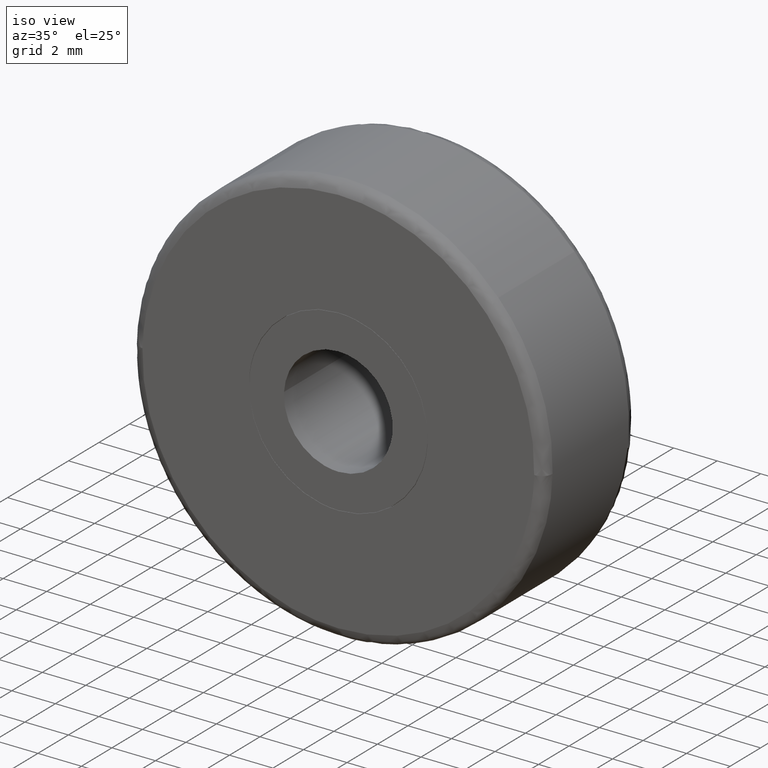
[diagram: clean part render]
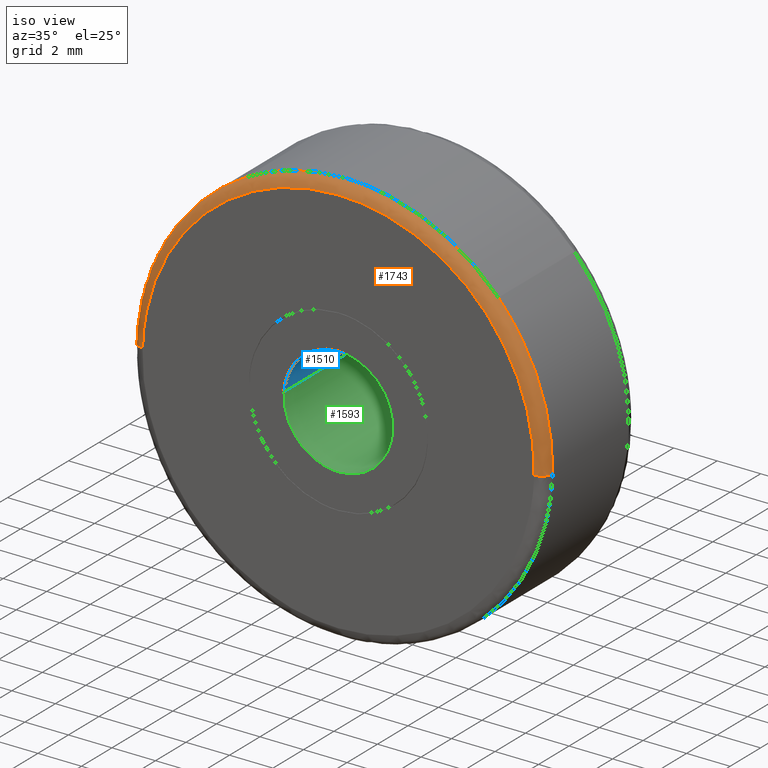
[diagram: same view with three faces highlighted in distinct colors, each labeled with its STEP entity id]
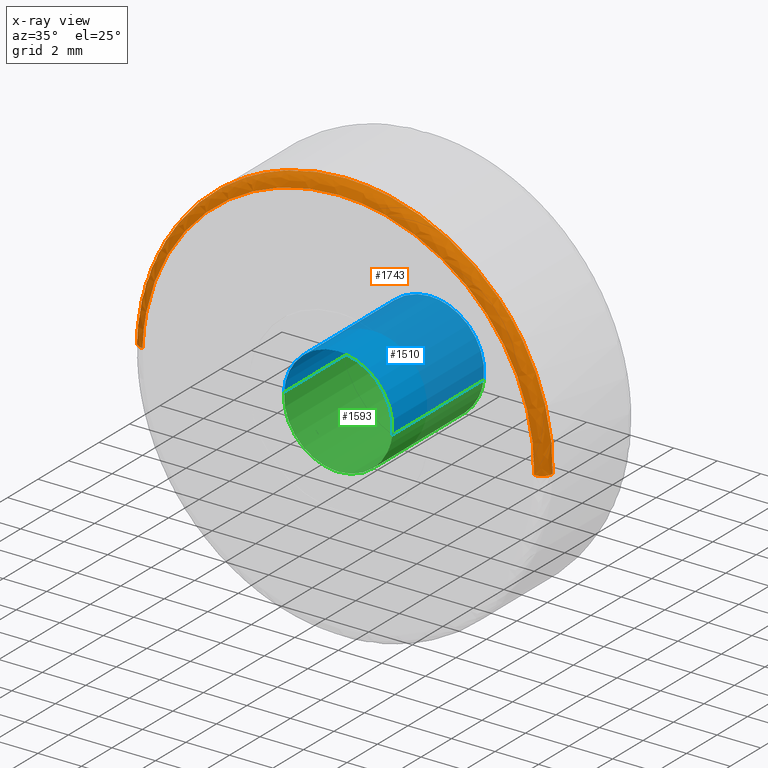
[diagram: x-ray of the same camera — body ghosted, the three highlighted faces saturated]
A machine part, iso view with three faces highlighted in distinct colors.
The next image is the same camera in x-ray (body ghosted, the three faces saturated) — at least one of them is partly hidden behind the body in this view.
Their STEP definitions:

[orange] entity #1743 — the highlighted face is a freeform B-spline surface patch.
#1190=CARTESIAN_POINT('',(-4.600085988359925,0.499999999981940,8.311991873172854));
#1191=VERTEX_POINT('',#1190);
#1192=CARTESIAN_POINT('',(-9.496999798191341,0.499999999859289,0.238735906711980));
#1193=VERTEX_POINT('',#1192);
#1194=CARTESIAN_POINT('',(-4.600085988359925,0.499999999981940,8.311991873172854));
#1195=CARTESIAN_POINT('',(-9.360278201085677,0.499999999941924,5.677569963987287));
#1196=CARTESIAN_POINT('',(-9.496999798191341,0.499999999859289,0.238735906711980));
#1204=(BOUNDED_CURVE()B_SPLINE_CURVE(2,(#1194,#1195,#1196),.UNSPECIFIED.,.F.,.U.)B_SPLINE_CURVE_WITH_KNOTS((3,3),(0.582484261791916,0.745579891769798),.UNSPECIFIED.)CURVE()GEOMETRIC_REPRESENTATION_ITEM()RATIONAL_B_SPLINE_CURVE((0.870495159113431,0.805504439765904,0.989826157681555))REPRESENTATION_ITEM(''));
#1205=EDGE_CURVE('',#1191,#1193,#1204,.T.);
#1276=CARTESIAN_POINT('',(7.004135048799357,0.500000000000003,6.418106591369461));
#1277=VERTEX_POINT('',#1276);
#1283=CARTESIAN_POINT('',(9.496999798191341,0.499999999859289,-0.238735906711978));
#1284=VERTEX_POINT('',#1283);
#1285=CARTESIAN_POINT('',(9.496999798191341,0.499999999859289,-0.238735906711978));
#1286=CARTESIAN_POINT('',(9.500000000000000,0.500000000000000,-0.119386805172379));
#1287=CARTESIAN_POINT('',(9.500000000000000,0.500000000000000,-1.501658E-016));
#1288=CARTESIAN_POINT('',(9.499999999999998,0.500000000000000,3.694347357720723));
#1289=CARTESIAN_POINT('',(7.004135048799357,0.500000000000003,6.418106591369461));
#1297=(BOUNDED_CURVE()B_SPLINE_CURVE(2,(#1285,#1286,#1287,#1288,#1289),.UNSPECIFIED.,.F.,.U.)B_SPLINE_CURVE_WITH_KNOTS((3,2,3),(0.245579891769798,0.250000000000000,0.368415192661570),.UNSPECIFIED.)CURVE()GEOMETRIC_REPRESENTATION_ITEM()RATIONAL_B_SPLINE_CURVE((0.989826157681553,0.994821521091809,1.0,0.861267972259750,0.853959782865036))REPRESENTATION_ITEM(''));
#1298=EDGE_CURVE('',#1284,#1277,#1297,.T.);
#1347=CARTESIAN_POINT('',(0.0,0.500000000000000,9.500000000000000));
#1348=VERTEX_POINT('',#1347);
#1349=CARTESIAN_POINT('',(0.0,0.500000000000000,9.500000000000000));
#1350=CARTESIAN_POINT('',(-2.453449181909779,0.500000000000000,9.499999999999998));
#1351=CARTESIAN_POINT('',(-4.600085988359925,0.499999999981940,8.311991873172854));
#1359=(BOUNDED_CURVE()B_SPLINE_CURVE(2,(#1349,#1350,#1351),.UNSPECIFIED.,.F.,.U.)B_SPLINE_CURVE_WITH_KNOTS((3,3),(0.500000000000000,0.582484261791916),.UNSPECIFIED.)CURVE()GEOMETRIC_REPRESENTATION_ITEM()RATIONAL_B_SPLINE_CURVE((1.0,0.903363676249257,0.870495159113431))REPRESENTATION_ITEM(''));
#1360=EDGE_CURVE('',#1348,#1191,#1359,.T.);
#1362=CARTESIAN_POINT('',(7.004135048799357,0.500000000000003,6.418106591369461));
#1363=CARTESIAN_POINT('',(4.180100660255818,0.500000000000000,9.500000000000000));
#1364=CARTESIAN_POINT('',(0.0,0.500000000000000,9.500000000000000));
#1372=(BOUNDED_CURVE()B_SPLINE_CURVE(2,(#1362,#1363,#1364),.UNSPECIFIED.,.F.,.U.)B_SPLINE_CURVE_WITH_KNOTS((3,3),(0.368415192661570,0.500000000000000),.UNSPECIFIED.)CURVE()GEOMETRIC_REPRESENTATION_ITEM()RATIONAL_B_SPLINE_CURVE((0.853959782865036,0.845838808926797,1.0))REPRESENTATION_ITEM(''));
#1373=EDGE_CURVE('',#1277,#1348,#1372,.T.);
#1617=CARTESIAN_POINT('',(-8.997157704102083,-7.545715E-016,0.226170859018032));
#1618=VERTEX_POINT('',#1617);
#1636=CARTESIAN_POINT('',(-9.496999798191341,0.499999999859289,0.238735906711980));
#1637=CARTESIAN_POINT('',(-9.496999797910013,1.105827E-009,0.238735906704634));
#1638=CARTESIAN_POINT('',(-8.997157704102083,-7.545715E-016,0.226170859018032));
#1646=(BOUNDED_CURVE()B_SPLINE_CURVE(2,(#1636,#1637,#1638),.UNSPECIFIED.,.F.,.U.)B_SPLINE_CURVE_WITH_KNOTS((3,3),(-1.723441281405269,-0.263586881216809),.UNSPECIFIED.)CURVE()GEOMETRIC_REPRESENTATION_ITEM()RATIONAL_B_SPLINE_CURVE((0.883897566934423,0.626638727744861,0.888510408241346))REPRESENTATION_ITEM(''));
#1647=EDGE_CURVE('',#1193,#1618,#1646,.T.);
#1651=CARTESIAN_POINT('',(8.997157704102083,-7.389523E-016,-0.226170859018029));
#1652=VERTEX_POINT('',#1651);
#1653=CARTESIAN_POINT('',(9.496999798191341,0.499999999859289,-0.238735906711978));
#1654=CARTESIAN_POINT('',(9.496999797910013,1.105827E-009,-0.238735906704633));
#1655=CARTESIAN_POINT('',(8.997157704102083,-7.389523E-016,-0.226170859018029));
#1663=(BOUNDED_CURVE()B_SPLINE_CURVE(2,(#1653,#1654,#1655),.UNSPECIFIED.,.F.,.U.)B_SPLINE_CURVE_WITH_KNOTS((3,3),(-1.723441281405269,-0.263586881216810),.UNSPECIFIED.)CURVE()GEOMETRIC_REPRESENTATION_ITEM()RATIONAL_B_SPLINE_CURVE((0.883897566934423,0.626638727744861,0.888510408241346))REPRESENTATION_ITEM(''));
#1664=EDGE_CURVE('',#1284,#1652,#1663,.T.);
#1682=CARTESIAN_POINT('',(9.495783334874179,0.534862112566139,-0.238705327215109));
#1683=CARTESIAN_POINT('',(9.734488662089289,0.534862112566139,9.257078007659070));
#1684=CARTESIAN_POINT('',(0.238705327215109,0.534862112566139,9.495783334874179));
#1685=CARTESIAN_POINT('',(-9.257078007659070,0.534862112566139,9.734488662089289));
#1686=CARTESIAN_POINT('',(-9.495783334874179,0.534862112566139,0.238705327215110));
#1687=CARTESIAN_POINT('',(9.535857199544944,-0.038668334935734,-0.239712705399895));
#1688=CARTESIAN_POINT('',(9.775569904944836,-0.038668334935734,9.296144494145045));
#1689=CARTESIAN_POINT('',(0.239712705399896,-0.038668334935734,9.535857199544944));
#1690=CARTESIAN_POINT('',(-9.296144494145045,-0.038668334935734,9.775569904944840));
#1691=CARTESIAN_POINT('',(-9.535857199544944,-0.038668334935734,0.239712705399896));
#1692=CARTESIAN_POINT('',(8.962492943248043,0.001203854216562,-0.225299455056435));
#1693=CARTESIAN_POINT('',(9.187792398304474,0.001203854216562,8.737193488191608));
#1694=CARTESIAN_POINT('',(0.225299455056435,0.001203854216562,8.962492943248043));
#1695=CARTESIAN_POINT('',(-8.737193488191604,0.001203854216562,9.187792398304474));
#1696=CARTESIAN_POINT('',(-8.962492943248043,0.001203854216562,0.225299455056436));
#1704=(BOUNDED_SURFACE()B_SPLINE_SURFACE(2,2,((#1682,#1687,#1692),(#1683,#1688,#1693),(#1684,#1689,#1694),(#1685,#1690,#1695),(#1686,#1691,#1696)),.UNSPECIFIED.,.F.,.F.,.U.)B_SPLINE_SURFACE_WITH_KNOTS((3,2,3),(3,3),(0.0,15.738099231042860,31.476198462085719),(0.0,0.911185700394117),.UNSPECIFIED.)GEOMETRIC_REPRESENTATION_ITEM()RATIONAL_B_SPLINE_SURFACE(((0.910892958135503,0.599412749565811,0.915966979117423),(0.644098587632688,0.423848819947659,0.647686462276886),(0.910892958135503,0.599412749565811,0.915966979117423),(0.644098587632688,0.423848819947659,0.647686462276886),(0.910892958135503,0.599412749565811,0.915966979117423)))REPRESENTATION_ITEM('')SURFACE());
#1705=CARTESIAN_POINT('',(0.0,-1.665335E-015,9.0));
#1706=VERTEX_POINT('',#1705);
#1707=CARTESIAN_POINT('',(0.0,-1.665335E-015,9.0));
#1708=CARTESIAN_POINT('',(-8.776600885598302,-1.665335E-015,9.0));
#1709=CARTESIAN_POINT('',(-8.997157704102083,-7.545715E-016,0.226170859018032));
#1717=(BOUNDED_CURVE()B_SPLINE_CURVE(2,(#1707,#1708,#1709),.UNSPECIFIED.,.F.,.U.)B_SPLINE_CURVE_WITH_KNOTS((3,3),(0.500000000000000,0.745579891769259),.UNSPECIFIED.)CURVE()GEOMETRIC_REPRESENTATION_ITEM()RATIONAL_B_SPLINE_CURVE((1.0,0.712285260095370,0.989826157680335))REPRESENTATION_ITEM(''));
#1718=EDGE_CURVE('',#1706,#1618,#1717,.T.);
#1719=ORIENTED_EDGE('',*,*,#1718,.F.);
#1720=CARTESIAN_POINT('',(8.997157704102083,-7.389523E-016,-0.226170859018029));
#1721=CARTESIAN_POINT('',(9.000000000000002,-1.665335E-015,-0.113103289124521));
#1722=CARTESIAN_POINT('',(9.0,-1.665335E-015,-1.501658E-016));
#1723=CARTESIAN_POINT('',(9.0,-1.665335E-015,9.0));
#1724=CARTESIAN_POINT('',(0.0,-1.665335E-015,9.0));
#1732=(BOUNDED_CURVE()B_SPLINE_CURVE(2,(#1720,#1721,#1722,#1723,#1724),.UNSPECIFIED.,.F.,.U.)B_SPLINE_CURVE_WITH_KNOTS((3,2,3),(0.245579891769259,0.250000000000000,0.500000000000000),.UNSPECIFIED.)CURVE()GEOMETRIC_REPRESENTATION_ITEM()RATIONAL_B_SPLINE_CURVE((0.989826157680337,0.994821521091178,1.0,0.707106781186547,1.0))REPRESENTATION_ITEM(''));
#1733=EDGE_CURVE('',#1652,#1706,#1732,.T.);
#1734=ORIENTED_EDGE('',*,*,#1733,.F.);
#1735=ORIENTED_EDGE('',*,*,#1664,.F.);
#1736=ORIENTED_EDGE('',*,*,#1298,.T.);
#1737=ORIENTED_EDGE('',*,*,#1373,.T.);
#1738=ORIENTED_EDGE('',*,*,#1360,.T.);
#1739=ORIENTED_EDGE('',*,*,#1205,.T.);
#1740=ORIENTED_EDGE('',*,*,#1647,.T.);
#1741=EDGE_LOOP('',(#1719,#1734,#1735,#1736,#1737,#1738,#1739,#1740));
#1742=FACE_OUTER_BOUND('',#1741,.T.);
#1743=ADVANCED_FACE('',(#1742),#1704,.T.);

[blue] entity #1510 — the highlighted face is a freeform B-spline surface patch.
#1408=CARTESIAN_POINT('',(2.482523815909166,6.150000000000001,-0.295085586641896));
#1409=CARTESIAN_POINT('',(2.490969038621514,6.150000000000001,-0.224036821594944));
#1410=CARTESIAN_POINT('',(2.495336996054667,6.150000000000001,-0.152621348837143));
#1411=CARTESIAN_POINT('',(2.647958344891809,6.150000000000002,2.342715647217524));
#1412=CARTESIAN_POINT('',(0.152621348837143,6.150000000000001,2.495336996054667));
#1413=CARTESIAN_POINT('',(-2.342715647217524,6.150000000000002,2.647958344891809));
#1414=CARTESIAN_POINT('',(-2.495336996054667,6.150000000000001,0.152621348837142));
#1415=CARTESIAN_POINT('',(2.482523815909166,-0.153750000000001,-0.295085586641896));
#1416=CARTESIAN_POINT('',(2.490969038621514,-0.153750000000001,-0.224036821594944));
#1417=CARTESIAN_POINT('',(2.495336996054667,-0.153750000000001,-0.152621348837143));
#1418=CARTESIAN_POINT('',(2.647958344891809,-0.153750000000001,2.342715647217524));
#1419=CARTESIAN_POINT('',(0.152621348837143,-0.153750000000001,2.495336996054667));
#1420=CARTESIAN_POINT('',(-2.342715647217524,-0.153750000000001,2.647958344891809));
#1421=CARTESIAN_POINT('',(-2.495336996054667,-0.153750000000001,0.152621348837142));
#1429=(BOUNDED_SURFACE()B_SPLINE_SURFACE(2,1,((#1408,#1415),(#1409,#1416),(#1410,#1417),(#1411,#1418),(#1412,#1419),(#1413,#1420),(#1414,#1421)),.UNSPECIFIED.,.F.,.F.,.U.)B_SPLINE_SURFACE_WITH_KNOTS((3,2,2,3),(2,2),(0.0,0.165685424949238,4.307821048680188,8.449956672411137),(0.0,6.303750000000004),.UNSPECIFIED.)GEOMETRIC_REPRESENTATION_ITEM()RATIONAL_B_SPLINE_SURFACE(((0.977505800795127,0.977505800795127),(0.988284271247462,0.988284271247462),(1.0,1.0),(0.707106781186548,0.707106781186548),(1.0,1.0),(0.707106781186548,0.707106781186548),(1.0,1.0)))REPRESENTATION_ITEM('')SURFACE());
#1430=CARTESIAN_POINT('',(2.482523815907784,6.0,-0.295085586653524));
#1431=VERTEX_POINT('',#1430);
#1432=CARTESIAN_POINT('',(0.0,6.0,2.500000000000000));
#1433=VERTEX_POINT('',#1432);
#1434=CARTESIAN_POINT('',(2.482523815907783,6.0,-0.295085586653524));
#1435=CARTESIAN_POINT('',(2.500000000000000,6.0,-0.148060299141526));
#1436=CARTESIAN_POINT('',(2.500000000000000,6.0,-1.501658E-016));
#1437=CARTESIAN_POINT('',(2.500000000000000,6.0,2.500000000000000));
#1438=CARTESIAN_POINT('',(0.0,6.0,2.500000000000000));
#1446=(BOUNDED_CURVE()B_SPLINE_CURVE(2,(#1434,#1435,#1436,#1437,#1438),.UNSPECIFIED.,.F.,.U.)B_SPLINE_CURVE_WITH_KNOTS((3,2,3),(0.229562473514061,0.250000000000000,0.500000000000000),.UNSPECIFIED.)CURVE()GEOMETRIC_REPRESENTATION_ITEM()RATIONAL_B_SPLINE_CURVE((0.956026754184783,0.976055948331793,1.0,0.707106781186548,1.0))REPRESENTATION_ITEM(''));
#1447=EDGE_CURVE('',#1431,#1433,#1446,.T.);
#1448=ORIENTED_EDGE('',*,*,#1447,.F.);
#1449=CARTESIAN_POINT('',(2.482523815907784,-4.567679E-016,-0.295085586653524));
#1450=VERTEX_POINT('',#1449);
#1451=CARTESIAN_POINT('',(2.482523815907784,6.0,-0.295085586653524));
#1452=CARTESIAN_POINT('',(2.482523815907784,-4.567679E-016,-0.295085586653524));
#1453=QUASI_UNIFORM_CURVE('',1,(#1451,#1452),.UNSPECIFIED.,.F.,.U.);
#1454=EDGE_CURVE('',#1431,#1450,#1453,.T.);
#1455=ORIENTED_EDGE('',*,*,#1454,.T.);
#1456=CARTESIAN_POINT('',(0.0,-4.592274E-016,2.500000000000000));
#1457=VERTEX_POINT('',#1456);
#1458=CARTESIAN_POINT('',(2.482523815907784,-4.567679E-016,-0.295085586653524));
#1459=CARTESIAN_POINT('',(2.500000000000000,-4.592274E-016,-0.148060299141526));
#1460=CARTESIAN_POINT('',(2.500000000000000,-4.592274E-016,-1.501658E-016));
#1461=CARTESIAN_POINT('',(2.500000000000000,-4.592274E-016,2.500000000000000));
#1462=CARTESIAN_POINT('',(0.0,-4.592274E-016,2.500000000000000));
#1470=(BOUNDED_CURVE()B_SPLINE_CURVE(2,(#1458,#1459,#1460,#1461,#1462),.UNSPECIFIED.,.F.,.U.)B_SPLINE_CURVE_WITH_KNOTS((3,2,3),(0.229562473514061,0.250000000000000,0.500000000000000),.UNSPECIFIED.)CURVE()GEOMETRIC_REPRESENTATION_ITEM()RATIONAL_B_SPLINE_CURVE((0.956026754184783,0.976055948331793,1.0,0.707106781186548,1.0))REPRESENTATION_ITEM(''));
#1471=EDGE_CURVE('',#1450,#1457,#1470,.T.);
#1472=ORIENTED_EDGE('',*,*,#1471,.T.);
#1473=CARTESIAN_POINT('',(-2.495336996053267,-4.794139E-016,0.152621348860041));
#1474=VERTEX_POINT('',#1473);
#1475=CARTESIAN_POINT('',(0.0,-4.592274E-016,2.500000000000000));
#1476=CARTESIAN_POINT('',(-2.351765167220983,-4.592274E-016,2.500000000000000));
#1477=CARTESIAN_POINT('',(-2.495336996053267,-4.794139E-016,0.152621348860041));
#1485=(BOUNDED_CURVE()B_SPLINE_CURVE(2,(#1475,#1476,#1477),.UNSPECIFIED.,.F.,.U.)B_SPLINE_CURVE_WITH_KNOTS((3,3),(0.500000000000000,0.739332962238801),.UNSPECIFIED.)CURVE()GEOMETRIC_REPRESENTATION_ITEM()RATIONAL_B_SPLINE_CURVE((1.0,0.719603993286877,0.976072041666413))REPRESENTATION_ITEM(''));
#1486=EDGE_CURVE('',#1457,#1474,#1485,.T.);
#1487=ORIENTED_EDGE('',*,*,#1486,.T.);
#1488=CARTESIAN_POINT('',(-2.495336996053267,6.0,0.152621348860041));
#1489=VERTEX_POINT('',#1488);
#1490=CARTESIAN_POINT('',(-2.495336996053267,6.0,0.152621348860041));
#1491=CARTESIAN_POINT('',(-2.495336996053267,-4.794139E-016,0.152621348860041));
#1492=QUASI_UNIFORM_CURVE('',1,(#1490,#1491),.UNSPECIFIED.,.F.,.U.);
#1493=EDGE_CURVE('',#1489,#1474,#1492,.T.);
#1494=ORIENTED_EDGE('',*,*,#1493,.F.);
#1495=CARTESIAN_POINT('',(0.0,6.0,2.500000000000000));
#1496=CARTESIAN_POINT('',(-2.351765167220983,6.000000000000001,2.500000000000000));
#1497=CARTESIAN_POINT('',(-2.495336996053267,6.000000000000001,0.152621348860041));
#1505=(BOUNDED_CURVE()B_SPLINE_CURVE(2,(#1495,#1496,#1497),.UNSPECIFIED.,.F.,.U.)B_SPLINE_CURVE_WITH_KNOTS((3,3),(0.500000000000000,0.739332962238801),.UNSPECIFIED.)CURVE()GEOMETRIC_REPRESENTATION_ITEM()RATIONAL_B_SPLINE_CURVE((1.0,0.719603993286877,0.976072041666413))REPRESENTATION_ITEM(''));
#1506=EDGE_CURVE('',#1433,#1489,#1505,.T.);
#1507=ORIENTED_EDGE('',*,*,#1506,.F.);
#1508=EDGE_LOOP('',(#1448,#1455,#1472,#1487,#1494,#1507));
#1509=FACE_OUTER_BOUND('',#1508,.T.);
#1510=ADVANCED_FACE('',(#1509),#1429,.F.);

[green] entity #1593 — the highlighted face is a freeform B-spline surface patch.
#1430=CARTESIAN_POINT('',(2.482523815907784,6.0,-0.295085586653524));
#1431=VERTEX_POINT('',#1430);
#1449=CARTESIAN_POINT('',(2.482523815907784,-4.567679E-016,-0.295085586653524));
#1450=VERTEX_POINT('',#1449);
#1451=CARTESIAN_POINT('',(2.482523815907784,6.0,-0.295085586653524));
#1452=CARTESIAN_POINT('',(2.482523815907784,-4.567679E-016,-0.295085586653524));
#1453=QUASI_UNIFORM_CURVE('',1,(#1451,#1452),.UNSPECIFIED.,.F.,.U.);
#1454=EDGE_CURVE('',#1431,#1450,#1453,.T.);
#1473=CARTESIAN_POINT('',(-2.495336996053267,-4.794139E-016,0.152621348860041));
#1474=VERTEX_POINT('',#1473);
#1488=CARTESIAN_POINT('',(-2.495336996053267,6.0,0.152621348860041));
#1489=VERTEX_POINT('',#1488);
#1490=CARTESIAN_POINT('',(-2.495336996053267,6.0,0.152621348860041));
#1491=CARTESIAN_POINT('',(-2.495336996053267,-4.794139E-016,0.152621348860041));
#1492=QUASI_UNIFORM_CURVE('',1,(#1490,#1491),.UNSPECIFIED.,.F.,.U.);
#1493=EDGE_CURVE('',#1489,#1474,#1492,.T.);
#1511=CARTESIAN_POINT('',(-2.495336996054667,6.150000000000001,0.152621348837142));
#1512=CARTESIAN_POINT('',(-2.647958344891809,6.150000000000002,-2.342715647217524));
#1513=CARTESIAN_POINT('',(-0.152621348837143,6.150000000000001,-2.495336996054667));
#1514=CARTESIAN_POINT('',(2.203858727098751,6.150000000000001,-2.639465491831319));
#1515=CARTESIAN_POINT('',(2.482523815909166,6.150000000000001,-0.295085586641896));
#1516=CARTESIAN_POINT('',(-2.495336996054667,-0.153750000000001,0.152621348837142));
#1517=CARTESIAN_POINT('',(-2.647958344891809,-0.153750000000001,-2.342715647217524));
#1518=CARTESIAN_POINT('',(-0.152621348837143,-0.153750000000001,-2.495336996054667));
#1519=CARTESIAN_POINT('',(2.203858727098751,-0.153750000000001,-2.639465491831319));
#1520=CARTESIAN_POINT('',(2.482523815909166,-0.153750000000001,-0.295085586641896));
#1528=(BOUNDED_SURFACE()B_SPLINE_SURFACE(2,1,((#1511,#1516),(#1512,#1517),(#1513,#1518),(#1514,#1519),(#1515,#1520)),.UNSPECIFIED.,.F.,.F.,.U.)B_SPLINE_SURFACE_WITH_KNOTS((3,2,3),(2,2),(0.0,4.142135623730949,8.118585822512660),(0.0,6.303750000000004),.UNSPECIFIED.)GEOMETRIC_REPRESENTATION_ITEM()RATIONAL_B_SPLINE_SURFACE(((1.0,1.0),(0.707106781186548,0.707106781186548),(1.0,1.0),(0.718822509939086,0.718822509939086),(0.977505800795127,0.977505800795127)))REPRESENTATION_ITEM('')SURFACE());
#1529=CARTESIAN_POINT('',(0.0,6.0,-2.500000000000000));
#1530=VERTEX_POINT('',#1529);
#1531=CARTESIAN_POINT('',(0.0,6.0,-2.500000000000000));
#1532=CARTESIAN_POINT('',(2.220436314857472,6.000000000000001,-2.500000000000000));
#1533=CARTESIAN_POINT('',(2.482523815907783,6.0,-0.295085586653524));
#1541=(BOUNDED_CURVE()B_SPLINE_CURVE(2,(#1531,#1532,#1533),.UNSPECIFIED.,.F.,.U.)B_SPLINE_CURVE_WITH_KNOTS((3,3),(0.0,0.229562473514061),.UNSPECIFIED.)CURVE()GEOMETRIC_REPRESENTATION_ITEM()RATIONAL_B_SPLINE_CURVE((1.0,0.731050832854755,0.956026754184783))REPRESENTATION_ITEM(''));
#1542=EDGE_CURVE('',#1530,#1431,#1541,.T.);
#1543=ORIENTED_EDGE('',*,*,#1542,.F.);
#1544=CARTESIAN_POINT('',(-2.495336996053267,6.000000000000001,0.152621348860041));
#1545=CARTESIAN_POINT('',(-2.500000000000001,6.0,0.076381908269435));
#1546=CARTESIAN_POINT('',(-2.500000000000000,6.0,-1.501658E-016));
#1547=CARTESIAN_POINT('',(-2.500000000000000,6.0,-2.500000000000000));
#1548=CARTESIAN_POINT('',(0.0,6.0,-2.500000000000000));
#1556=(BOUNDED_CURVE()B_SPLINE_CURVE(2,(#1544,#1545,#1546,#1547,#1548),.UNSPECIFIED.,.F.,.U.)B_SPLINE_CURVE_WITH_KNOTS((3,2,3),(0.739332962238802,0.750000000000000,1.0),.UNSPECIFIED.)CURVE()GEOMETRIC_REPRESENTATION_ITEM()RATIONAL_B_SPLINE_CURVE((0.976072041666415,0.987502787899672,1.0,0.707106781186548,1.0))REPRESENTATION_ITEM(''));
#1557=EDGE_CURVE('',#1489,#1530,#1556,.T.);
#1558=ORIENTED_EDGE('',*,*,#1557,.F.);
#1559=ORIENTED_EDGE('',*,*,#1493,.T.);
#1560=CARTESIAN_POINT('',(0.0,-4.592274E-016,-2.500000000000000));
#1561=VERTEX_POINT('',#1560);
#1562=CARTESIAN_POINT('',(-2.495336996053267,-4.794139E-016,0.152621348860041));
#1563=CARTESIAN_POINT('',(-2.500000000000001,-4.592274E-016,0.076381908269435));
#1564=CARTESIAN_POINT('',(-2.500000000000000,-4.592274E-016,-1.501658E-016));
#1565=CARTESIAN_POINT('',(-2.500000000000000,-4.592274E-016,-2.500000000000000));
#1566=CARTESIAN_POINT('',(0.0,-4.592274E-016,-2.500000000000000));
#1574=(BOUNDED_CURVE()B_SPLINE_CURVE(2,(#1562,#1563,#1564,#1565,#1566),.UNSPECIFIED.,.F.,.U.)B_SPLINE_CURVE_WITH_KNOTS((3,2,3),(0.739332962238802,0.750000000000000,1.0),.UNSPECIFIED.)CURVE()GEOMETRIC_REPRESENTATION_ITEM()RATIONAL_B_SPLINE_CURVE((0.976072041666415,0.987502787899672,1.0,0.707106781186548,1.0))REPRESENTATION_ITEM(''));
#1575=EDGE_CURVE('',#1474,#1561,#1574,.T.);
#1576=ORIENTED_EDGE('',*,*,#1575,.T.);
#1577=CARTESIAN_POINT('',(0.0,-4.592274E-016,-2.500000000000000));
#1578=CARTESIAN_POINT('',(2.220436314857472,-4.592274E-016,-2.500000000000000));
#1579=CARTESIAN_POINT('',(2.482523815907783,-4.567679E-016,-0.295085586653524));
#1587=(BOUNDED_CURVE()B_SPLINE_CURVE(2,(#1577,#1578,#1579),.UNSPECIFIED.,.F.,.U.)B_SPLINE_CURVE_WITH_KNOTS((3,3),(0.0,0.229562473514061),.UNSPECIFIED.)CURVE()GEOMETRIC_REPRESENTATION_ITEM()RATIONAL_B_SPLINE_CURVE((1.0,0.731050832854755,0.956026754184783))REPRESENTATION_ITEM(''));
#1588=EDGE_CURVE('',#1561,#1450,#1587,.T.);
#1589=ORIENTED_EDGE('',*,*,#1588,.T.);
#1590=ORIENTED_EDGE('',*,*,#1454,.F.);
#1591=EDGE_LOOP('',(#1543,#1558,#1559,#1576,#1589,#1590));
#1592=FACE_OUTER_BOUND('',#1591,.T.);
#1593=ADVANCED_FACE('',(#1592),#1528,.F.);